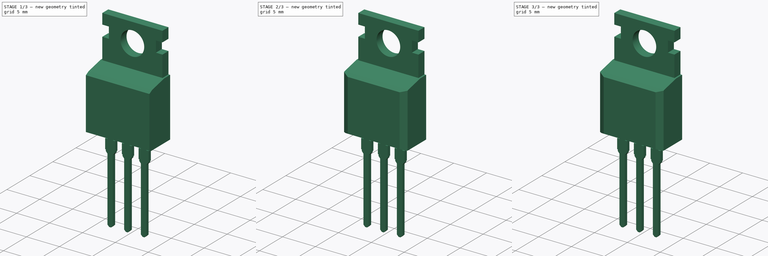
[diagram: build sequence overview — one tinted view per stage of 3, left to right]
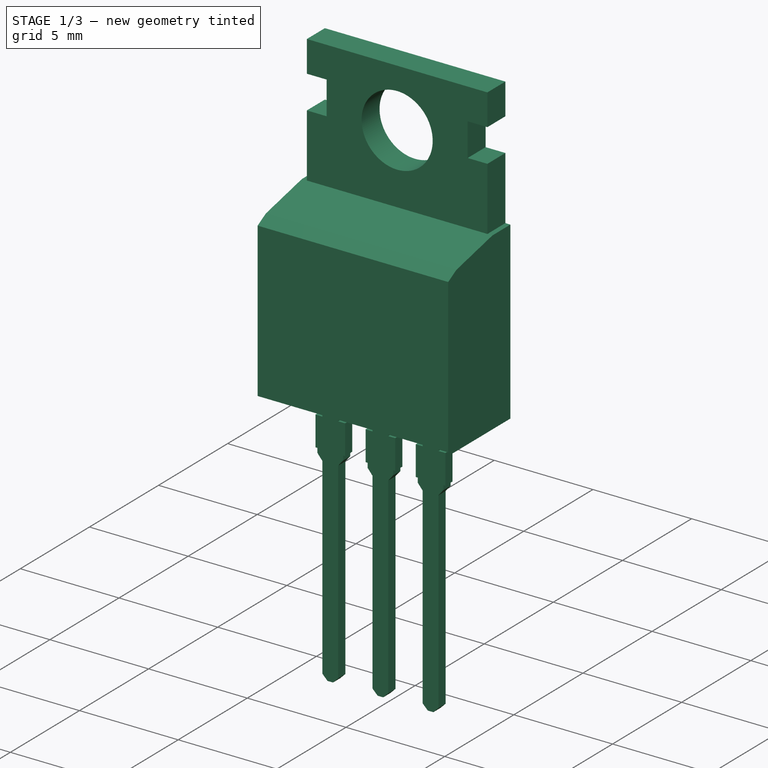
[diagram: stage 1 of 3 — iso view after this stage's code; geometry added in this stage tinted green]
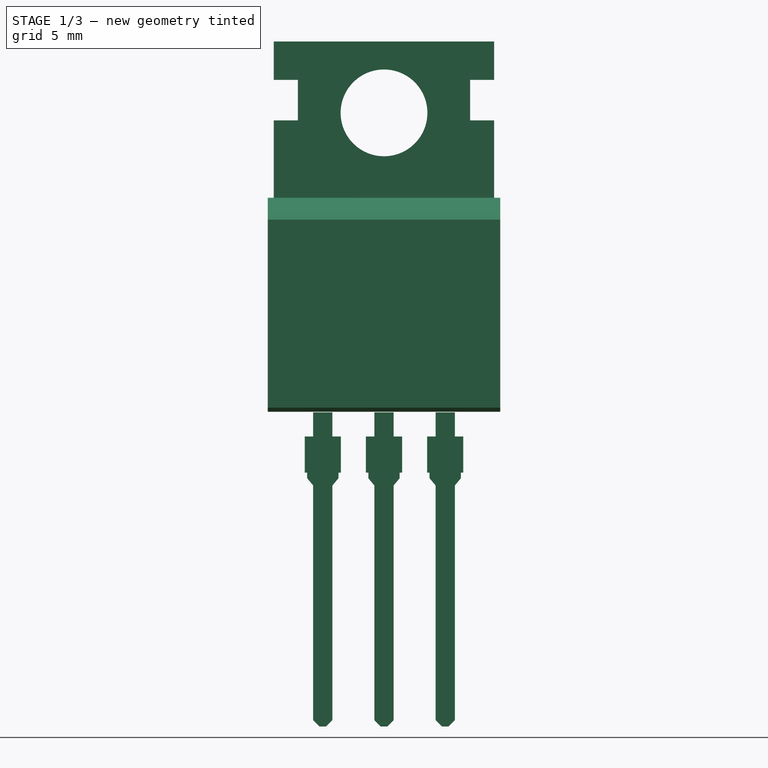
[diagram: stage 1 of 3 — front view after this stage's code; geometry added in this stage tinted green]
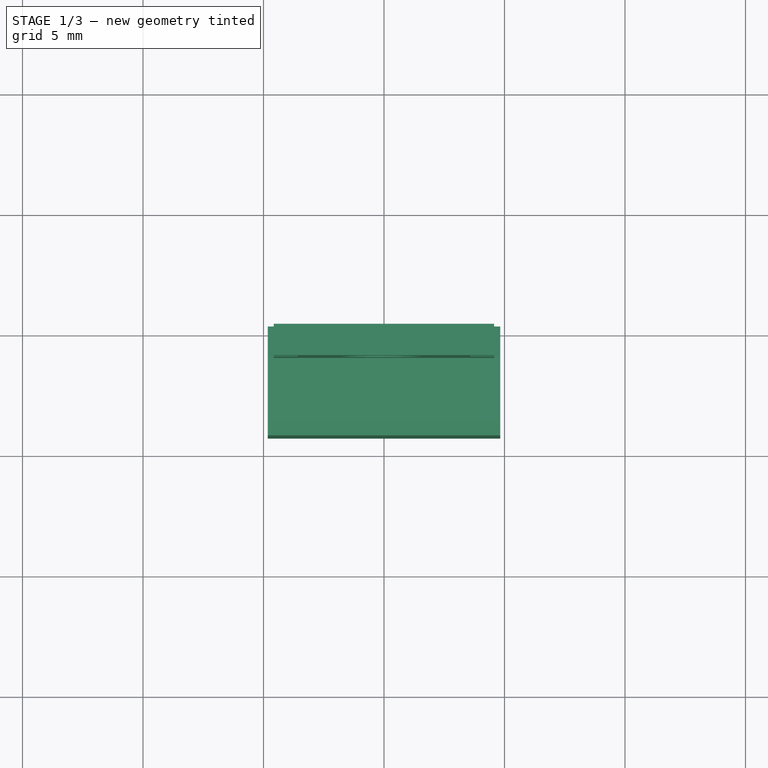
[diagram: stage 1 of 3 — top view after this stage's code; geometry added in this stage tinted green]
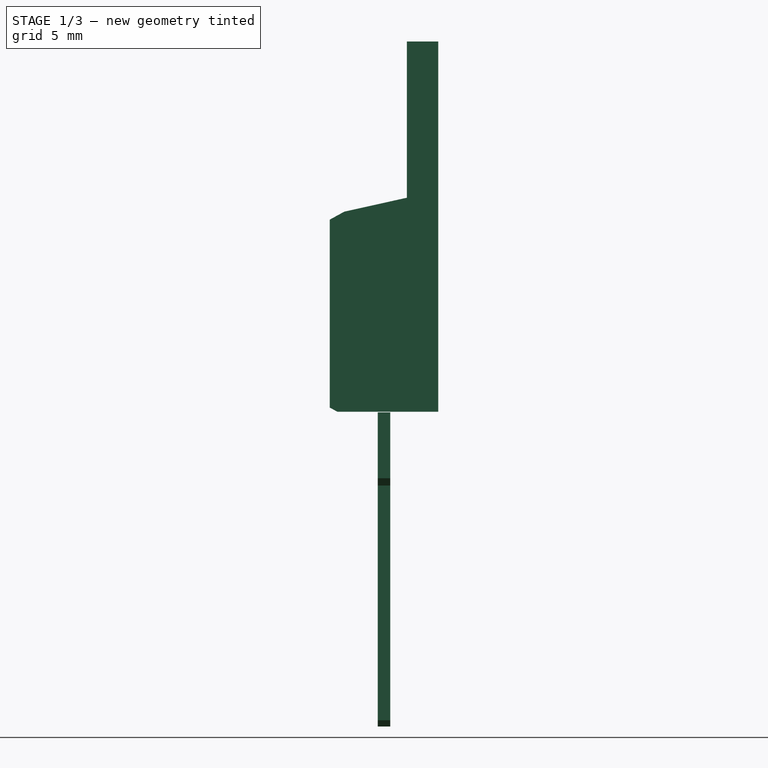
[diagram: stage 1 of 3 — right view after this stage's code; geometry added in this stage tinted green]
FCSTD DOCUMENT  (FreeCAD 0.14R3702 (Git))
Label: mosfet-P55NF06L
License: CC-BY 3.0
LicenseURL: http://creativecommons.org/licenses/by/3.0/
objects: Sketcher::SketchObject×5, Part::Feature×4, PartDesign::Pad×3, PartDesign::Pocket×2, Part::FeaturePython×1, App::DocumentObjectGroup×1, Part::Compound×1
note: 21 computed .brp shape members not serialized (recipe doc carries the construction recipe); baked Part::Feature solids carry a one-line shape summary decoded from their .brp

FEATURE [Part::Feature] Part__Feature  label="RAMPS1_136"
  Placement = pos=(0,0,1.05) rot=(1,0,0;3.14159rad)
  shape: bbox 9.653 x 4.501 x 28.38 mm, 90 faces (baked)
FEATURE [Sketcher::SketchObject] Sketch  label="main-body-sketch"
  Placement = pos=(0,0,0) rot=(0.57735,0.57735,0.57735;2.0944rad)
  sketch-geometry (7):
    g0: LineSegment StartX=0 StartY=8.88 StartZ=0 EndX=-1.3 EndY=8.88 EndZ=0
    g1: LineSegment StartX=-1.3 StartY=8.88 StartZ=0 EndX=-3.9 EndY=8.3 EndZ=0
    g2: LineSegment StartX=-3.9 StartY=8.3 StartZ=0 EndX=-4.5 EndY=7.97 EndZ=0
    g3: LineSegment StartX=-4.5 StartY=7.97 StartZ=0 EndX=-4.5 EndY=0.17 EndZ=0
    g4: LineSegment StartX=-4.5 StartY=0.17 StartZ=0 EndX=-4.18 EndY=0 EndZ=0
    g5: LineSegment StartX=-4.18 StartY=0 StartZ=0 EndX=0 EndY=0 EndZ=0
    g6: LineSegment StartX=0 StartY=0 StartZ=0 EndX=0 EndY=8.88 EndZ=0
  constraints (20):
    c: Coincident(g0,g1)
    c: Coincident(g1,g2)
    c: Coincident(g2,g3)
    c: Coincident(g3,g4)
    c: Coincident(g4,g5)
    c: Coincident(g5,g6)
    c: Coincident(g6,g0)
    c: Vertical(g6)
    c: Horizontal(g0)
    c: Vertical(g3)
    c: Horizontal(g5)
    c: Coincident(g5,g-1)
    c: DistanceY(g6) = 8.88
    c: DistanceX(g0) = -1.3
    c: DistanceY(g3) = -7.8
    c: DistanceX(g5) = 4.18
    c: DistanceX(g4,g3) = -0.32
    c: DistanceY(g3) = 0.17
    c: DistanceX(g1,g0) = 2.6
    c: DistanceY(g1,g0) = 0.58
FEATURE [PartDesign::Pad] Pad  label="main-body"
  Length = 9.652
  Length2 = 100
  Midplane = true
  Placement = pos=(0,0,0) rot=(0.57735,0.57735,0.57735;2.0944rad)
  Sketch = -> Sketch
  Type = 0
FEATURE [App::DocumentObjectGroup] Group  label="mosfet-src"
  Group = -> [Pad,Pad001,Pocket,Array,Pocket001]
FEATURE [Part::Feature] Pocket001001  label="body"
  Placement = pos=(0,0,0) rot=(0.57735,0.57735,0.57735;2.0944rad)
  shape: bbox 9.652 x 4.5 x 8.88 mm, 11 faces (baked)
FEATURE [Part::Feature] Pocket001002  label="drill001"
  Placement = pos=(0,0,0) rot=(1,0,0;1.5708rad)
  shape: bbox 9.144 x 1.3 x 6.5 mm, 15 faces (baked)
FEATURE [Part::Feature] Array001  label="pins"
  shape: bbox 6.58 x 0.52 x 13.03 mm, 60 faces, 3 solids (baked)
FEATURE [Part::Compound] Compound  label="Mosfet-P55NF06L"
  Links = -> [Pocket001001,Array001,Pocket001002]
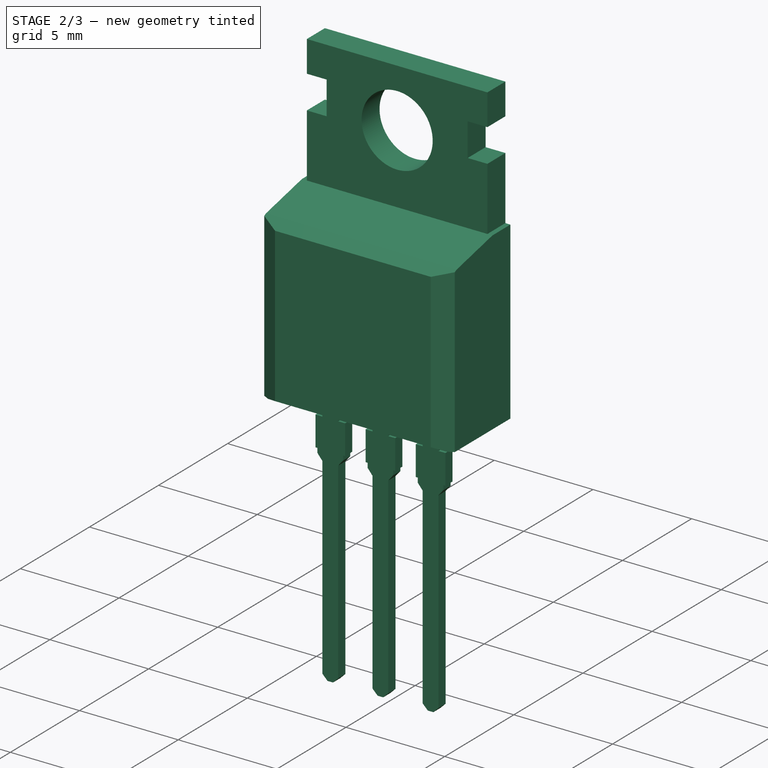
[diagram: stage 2 of 3 — iso view after this stage's code; geometry added in this stage tinted green]
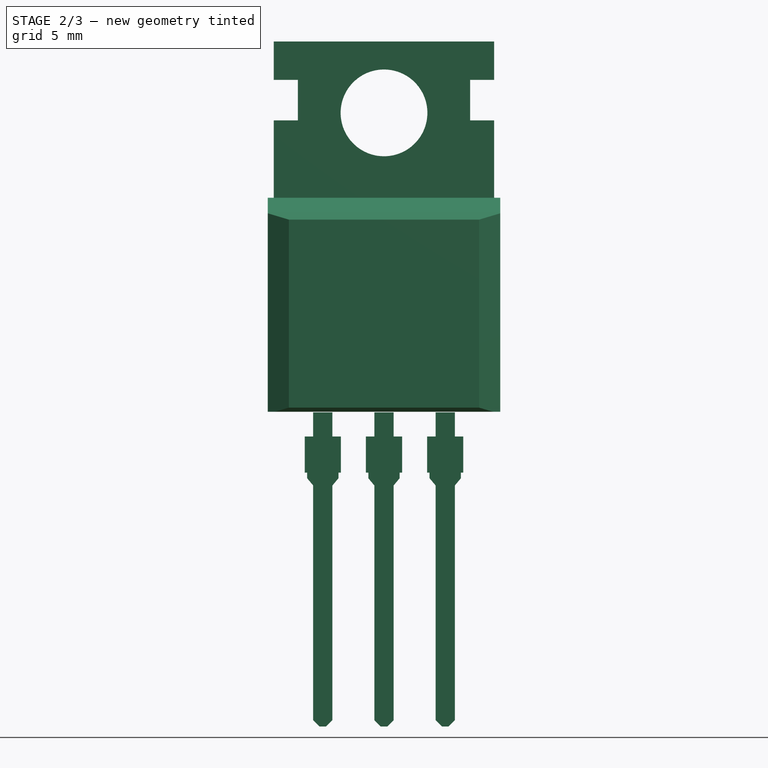
[diagram: stage 2 of 3 — front view after this stage's code; geometry added in this stage tinted green]
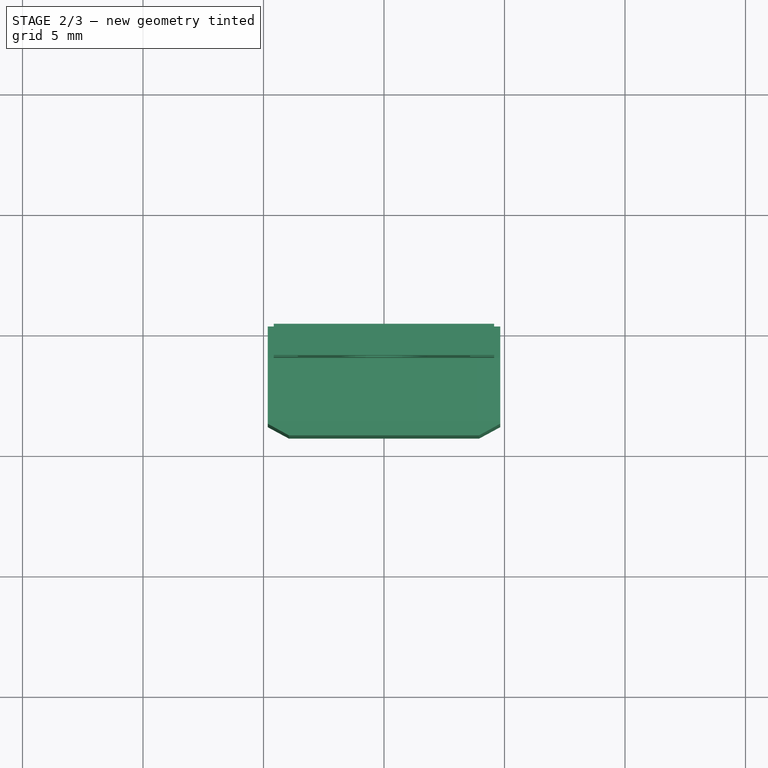
[diagram: stage 2 of 3 — top view after this stage's code; geometry added in this stage tinted green]
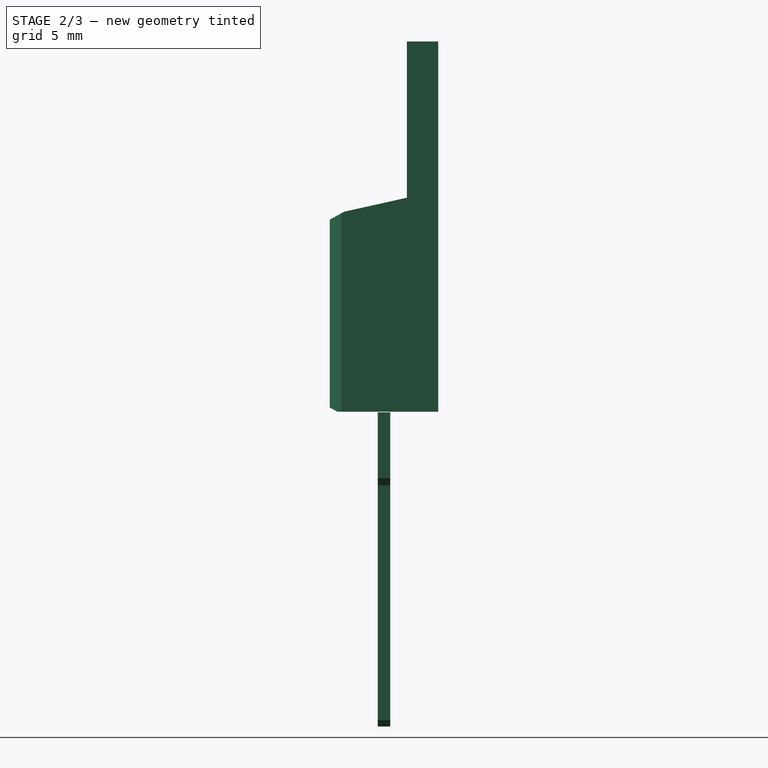
[diagram: stage 2 of 3 — right view after this stage's code; geometry added in this stage tinted green]
FEATURE [Sketcher::SketchObject] Sketch003  label="pin-master-sketch"
  Placement = pos=(-2.54,-1.99,-0.0295) rot=(-1,0,0;4.71239rad)
  sketch-geometry (18):
    g0: LineSegment StartX=0.4 StartY=0 StartZ=0 EndX=-0.4 EndY=0 EndZ=0
    g1: LineSegment StartX=-0.4 StartY=0 StartZ=0 EndX=-0.4 EndY=-1 EndZ=0
    g2: LineSegment StartX=-0.4 StartY=-1 StartZ=0 EndX=-0.75 EndY=-1 EndZ=0
    g3: LineSegment StartX=-0.75 StartY=-1 StartZ=0 EndX=-0.75 EndY=-2.5 EndZ=0
    g4: LineSegment StartX=-0.75 StartY=-2.5 StartZ=0 EndX=-0.65 EndY=-2.5 EndZ=0
    g5: LineSegment StartX=-0.65 StartY=-2.5 StartZ=0 EndX=-0.65 EndY=-2.73 EndZ=0
    g6: LineSegment StartX=-0.65 StartY=-2.73 StartZ=0 EndX=-0.4 EndY=-3.03 EndZ=0
    g7: LineSegment StartX=-0.4 StartY=-3.03 StartZ=0 EndX=-0.4 EndY=-12.77 EndZ=0
    g8: LineSegment StartX=-0.4 StartY=-12.77 StartZ=0 EndX=-0.14 EndY=-13.03 EndZ=0
    g9: LineSegment StartX=-0.14 StartY=-13.03 StartZ=0 EndX=0.14 EndY=-13.03 EndZ=0
    g10: LineSegment StartX=0.14 StartY=-13.03 StartZ=0 EndX=0.4 EndY=-12.77 EndZ=0
    g11: LineSegment StartX=0.4 StartY=-12.77 StartZ=0 EndX=0.4 EndY=-3.03 EndZ=0
    g12: LineSegment StartX=0.4 StartY=-3.03 StartZ=0 EndX=0.65 EndY=-2.73 EndZ=0
    g13: LineSegment StartX=0.65 StartY=-2.73 StartZ=0 EndX=0.65 EndY=-2.5 EndZ=0
    g14: LineSegment StartX=0.65 StartY=-2.5 StartZ=0 EndX=0.75 EndY=-2.5 EndZ=0
    g15: LineSegment StartX=0.75 StartY=-2.5 StartZ=0 EndX=0.75 EndY=-1 EndZ=0
    g16: LineSegment StartX=0.75 StartY=-1 StartZ=0 EndX=0.4 EndY=-1 EndZ=0
    g17: LineSegment StartX=0.4 StartY=-1 StartZ=0 EndX=0.4 EndY=0 EndZ=0
  constraints (51):
    c: Horizontal(g0)
    c: Coincident(g0,g1)
    c: Vertical(g1)
    c: Coincident(g1,g2)
    c: Horizontal(g2)
    c: Coincident(g2,g3)
    c: Vertical(g3)
    c: Coincident(g3,g4)
    c: Coincident(g4,g5)
    c: Vertical(g5)
    c: Coincident(g5,g6)
    c: Coincident(g6,g7)
    c: Vertical(g7)
    c: Coincident(g7,g8)
    c: Coincident(g8,g9)
    c: PointOnObject(g0,g-1)
    c: Symmetric(g0,g0,g-2)
    c: DistanceX(g0) = -0.8
    c: DistanceX(g2) = -0.35
    c: Horizontal(g4)
    c: DistanceY(g3) = -1.5
    c: DistanceX(g4) = 0.1
    c: DistanceY(g1) = -1
    c: DistanceY(g5) = -0.23
    c: DistanceY(g6,g5) = 0.3
    c: DistanceX(g5,g6) = 0.25
    c: Horizontal(g9)
    c: Symmetric(g8,g9,g-2)
    c: DistanceY(g7) = -9.74
    c: DistanceY(g8,g7) = 0.26
    c: DistanceX(g7,g8) = 0.26
    c: Coincident(g10,g11)
    c: Vertical(g11)
    c: Coincident(g10,g9)
    c: Symmetric(g7,g10,g-2)
    c: Symmetric(g6,g11,g-2)
    c: Coincident(g12,g13)
    c: Vertical(g13)
    c: Coincident(g13,g14)
    c: Horizontal(g14)
    c: Coincident(g14,g15)
    c: Vertical(g15)
    c: Coincident(g12,g11)
    c: Symmetric(g12,g5,g-2)
    c: Symmetric(g4,g13,g-2)
    c: Symmetric(g15,g2,g-2)
    c: Horizontal(g16)
    c: Coincident(g16,g17)
    c: Vertical(g17)
    c: Coincident(g16,g15)
    c: Coincident(g17,g0)
FEATURE [PartDesign::Pad] Pad002  label="pin-master"
  Length = 0.52
  Length2 = 100
  Placement = pos=(-2.54,-1.99,-0.0295) rot=(-1,0,0;4.71239rad)
  Sketch = -> Sketch003
  Type = 0
FEATURE [Part::FeaturePython] Array  # Draft array (typed FeaturePython)
  Angle = 360
  ArrayType = 0
  Axis = (0,0,1)
  Base = -> Pad002
  Center = (0,0,0)
  IntervalX = (2.54,0,0)
  IntervalY = (0,1,0)
  IntervalZ = (0,0,1)
  NumberPolar = 1
  NumberX = 3
  NumberY = 1
  NumberZ = 1
FEATURE [Sketcher::SketchObject] Sketch004  label="body-cutout-1-sketch"
  ExternalGeometry = -> [Pad]
  Placement = pos=(0,0,8.88) rot=(0,0,-1;1.5708rad)
  Support = -> Pad [Face1]
  sketch-geometry (6):
    g0: LineSegment StartX=4.02 StartY=-4.826 StartZ=0 EndX=4.5 EndY=-3.946 EndZ=0
    g1: LineSegment StartX=4.5 StartY=-3.946 StartZ=0 EndX=4.5 EndY=3.946 EndZ=0
    g2: LineSegment StartX=4.5 StartY=3.946 StartZ=0 EndX=4.02 EndY=4.826 EndZ=0
    g3: LineSegment StartX=4.02 StartY=4.826 StartZ=0 EndX=5.05 EndY=4.826 EndZ=0
    g4: LineSegment StartX=5.05 StartY=4.826 StartZ=0 EndX=5.05 EndY=-4.826 EndZ=0
    g5: LineSegment StartX=5.05 StartY=-4.826 StartZ=0 EndX=4.02 EndY=-4.826 EndZ=0
  constraints (18):
    c: Coincident(g0,g1)
    c: Vertical(g1)
    c: Coincident(g1,g2)
    c: Coincident(g2,g3)
    c: Horizontal(g3)
    c: Coincident(g3,g4)
    c: Vertical(g4)
    c: Coincident(g4,g5)
    c: Coincident(g5,g0)
    c: Horizontal(g5)
    c: PointOnObject(g0,g-3)
    c: PointOnObject(g0,g-4)
    c: DistanceX(g-4,g0) = -0.48
    c: DistanceY(g-4,g0) = 0.88
    c: DistanceX(g-4,g4) = 0.55
    c: Symmetric(g4,g3,g-1)
    c: Symmetric(g1,g0,g-1)
    c: Symmetric(g2,g0,g-1)
FEATURE [PartDesign::Pocket] Pocket001  label="body-cutout-1"
  Length = 5
  Placement = pos=(0,0,0) rot=(0.57735,0.57735,0.57735;2.0944rad)
  Sketch = -> Sketch004
  Type = 1
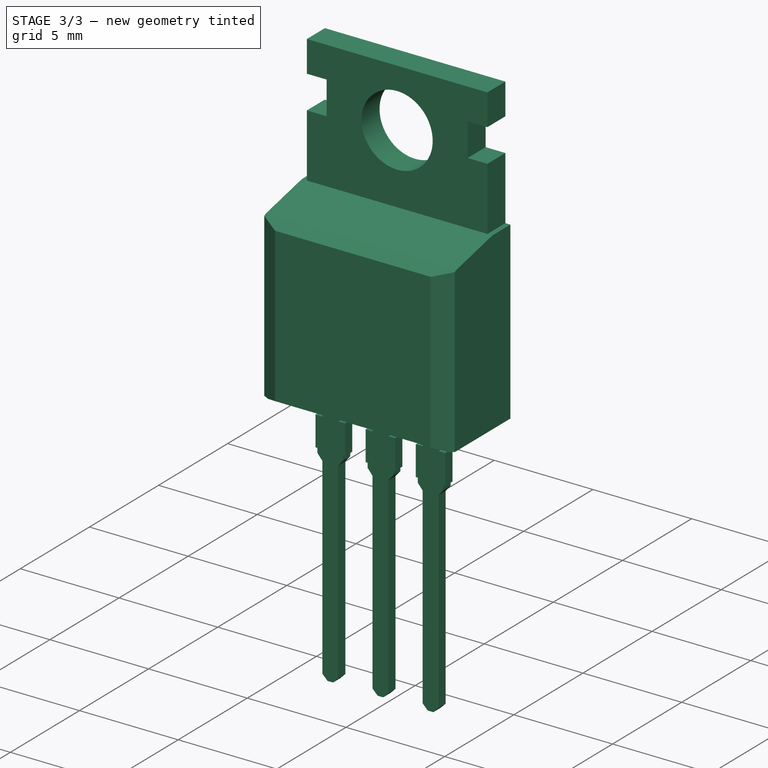
[diagram: stage 3 of 3 — iso view after this stage's code; geometry added in this stage tinted green]
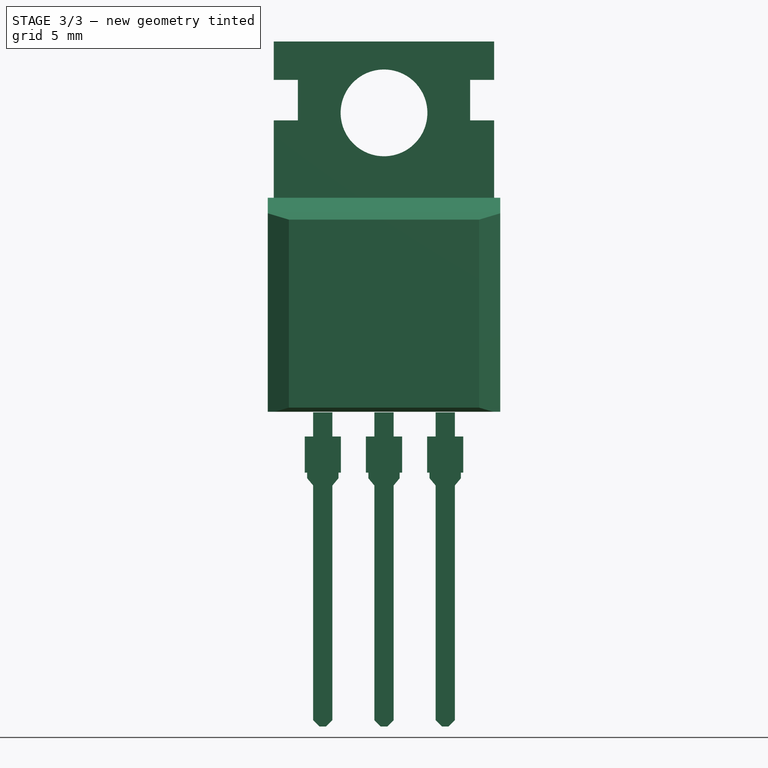
[diagram: stage 3 of 3 — front view after this stage's code; geometry added in this stage tinted green]
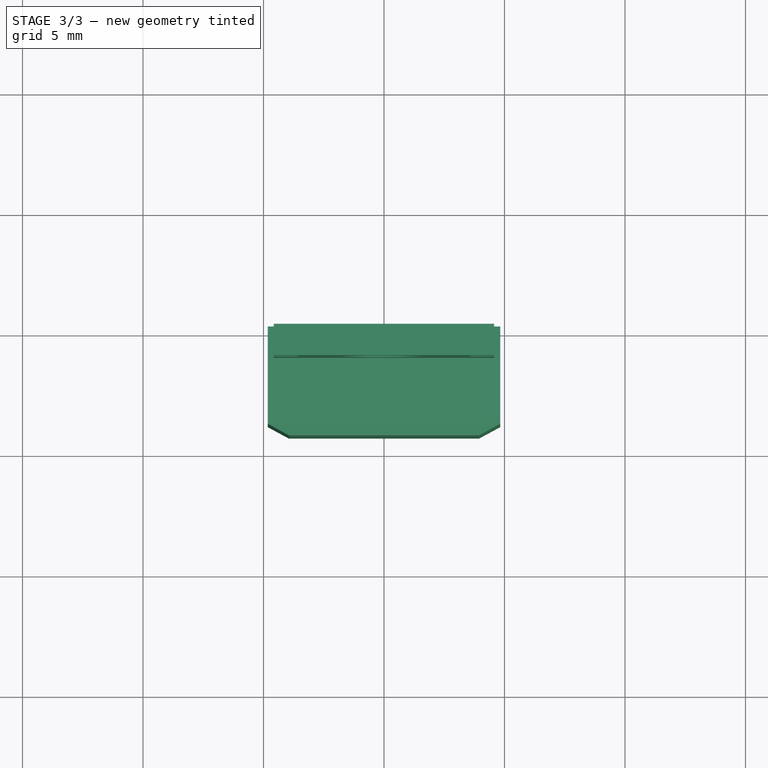
[diagram: stage 3 of 3 — top view after this stage's code; geometry added in this stage tinted green]
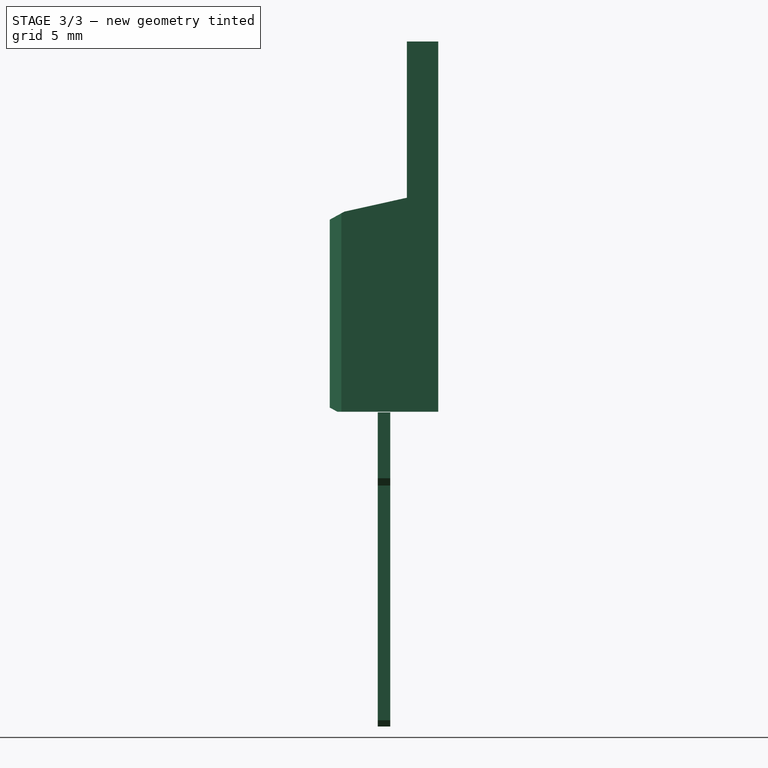
[diagram: stage 3 of 3 — right view after this stage's code; geometry added in this stage tinted green]
FEATURE [Sketcher::SketchObject] Sketch001  label="top-part-sketch"
  Placement = pos=(0,0,0) rot=(-1,0,0;4.71239rad)
  sketch-geometry (12):
    g0: LineSegment StartX=-4.572 StartY=15.36 StartZ=0 EndX=4.572 EndY=15.36 EndZ=0
    g1: LineSegment StartX=4.572 StartY=8.86 StartZ=0 EndX=-4.572 EndY=8.86 EndZ=0
    g2: LineSegment StartX=-4.572 StartY=8.86 StartZ=0 EndX=-4.572 EndY=12.09 EndZ=0
    g3: LineSegment StartX=-4.572 StartY=12.09 StartZ=0 EndX=-3.572 EndY=12.09 EndZ=0
    g4: LineSegment StartX=-3.572 StartY=12.09 StartZ=0 EndX=-3.572 EndY=13.77 EndZ=0
    g5: LineSegment StartX=-3.572 StartY=13.77 StartZ=0 EndX=-4.572 EndY=13.77 EndZ=0
    g6: LineSegment StartX=-4.572 StartY=13.77 StartZ=0 EndX=-4.572 EndY=15.36 EndZ=0
    g7: LineSegment StartX=4.572 StartY=15.36 StartZ=0 EndX=4.572 EndY=13.77 EndZ=0
    g8: LineSegment StartX=4.572 StartY=13.77 StartZ=0 EndX=3.572 EndY=13.77 EndZ=0
    g9: LineSegment StartX=3.572 StartY=13.77 StartZ=0 EndX=3.572 EndY=12.09 EndZ=0
    g10: LineSegment StartX=3.572 StartY=12.09 StartZ=0 EndX=4.572 EndY=12.09 EndZ=0
    g11: LineSegment StartX=4.572 StartY=12.09 StartZ=0 EndX=4.572 EndY=8.86 EndZ=0
  constraints (35):
    c: Horizontal(g0)
    c: Symmetric(g0,g0,g-2)
    c: Horizontal(g1)
    c: Coincident(g1,g2)
    c: Vertical(g2)
    c: Coincident(g2,g3)
    c: Horizontal(g3)
    c: Coincident(g3,g4)
    c: Vertical(g4)
    c: Coincident(g4,g5)
    c: Horizontal(g5)
    c: Coincident(g5,g6)
    c: Coincident(g6,g0)
    c: Vertical(g6)
    c: DistanceX(g0) = 9.144
    c: DistanceY(g0,g1) = -6.5
    c: PointOnObject(g2,g6)
    c: DistanceX(g5) = -1
    c: DistanceY(g4) = 1.68
    c: DistanceY(g2) = 3.23
    c: DistanceY(g-1,g1) = 8.86
    c: Symmetric(g1,g1,g-2)
    c: Vertical(g7)
    c: Coincident(g7,g8)
    c: Coincident(g8,g9)
    c: Vertical(g9)
    c: Coincident(g9,g10)
    c: Coincident(g10,g11)
    c: Vertical(g11)
    c: Horizontal(g10)
    c: Horizontal(g8)
    c: Coincident(g11,g1)
    c: Coincident(g7,g0)
    c: Symmetric(g8,g4,g-2)
    c: Symmetric(g9,g3,g-2)
FEATURE [PartDesign::Pad] Pad001  label="top-part"
  Length = 1.3
  Length2 = 100
  Placement = pos=(0,0,0) rot=(-1,0,0;4.71239rad)
  Sketch = -> Sketch001
  Type = 0
FEATURE [Sketcher::SketchObject] Sketch002  label="drill-sketch"
  Placement = pos=(0,-1.3,0) rot=(1,0,0;1.5708rad)
  Support = -> Pad001 [Face14]
  sketch-geometry (1):
    g0: Circle CenterX=0 CenterY=12.4 CenterZ=0 NormalX=0 NormalY=0 NormalZ=1 Radius=1.8
  constraints (3):
    c: PointOnObject(g0,g-2)
    c: DistanceY(g-1,g0) = 12.4
    c: Radius(g0) = 1.8
FEATURE [PartDesign::Pocket] Pocket  label="drill"
  Length = 5
  Placement = pos=(0,0,0) rot=(-1,0,0;4.71239rad)
  Sketch = -> Sketch002
  Type = 1
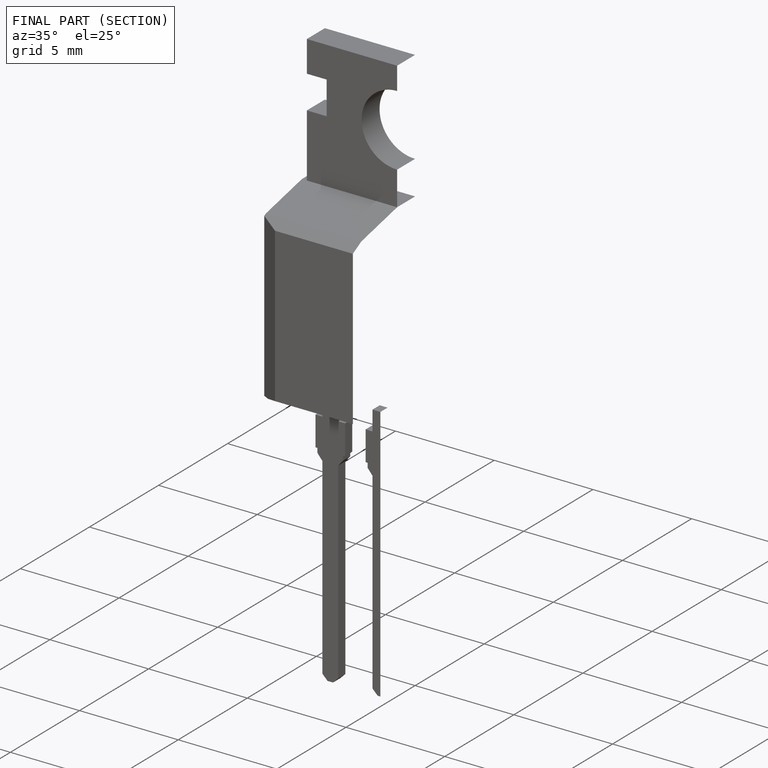
[diagram: finished part — half-section view (interior)]
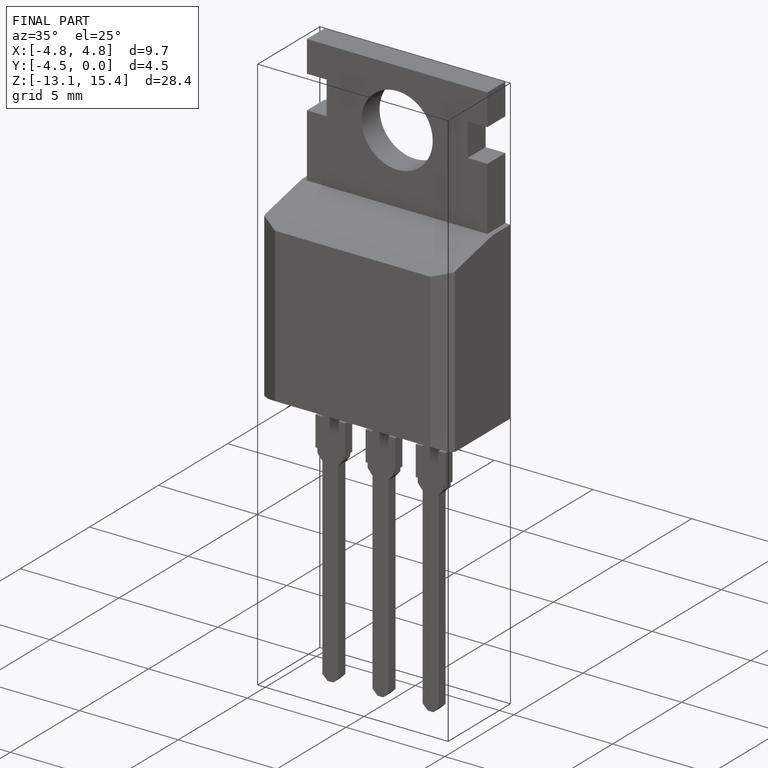
[diagram: finished part — iso view with bounding-box wireframe]
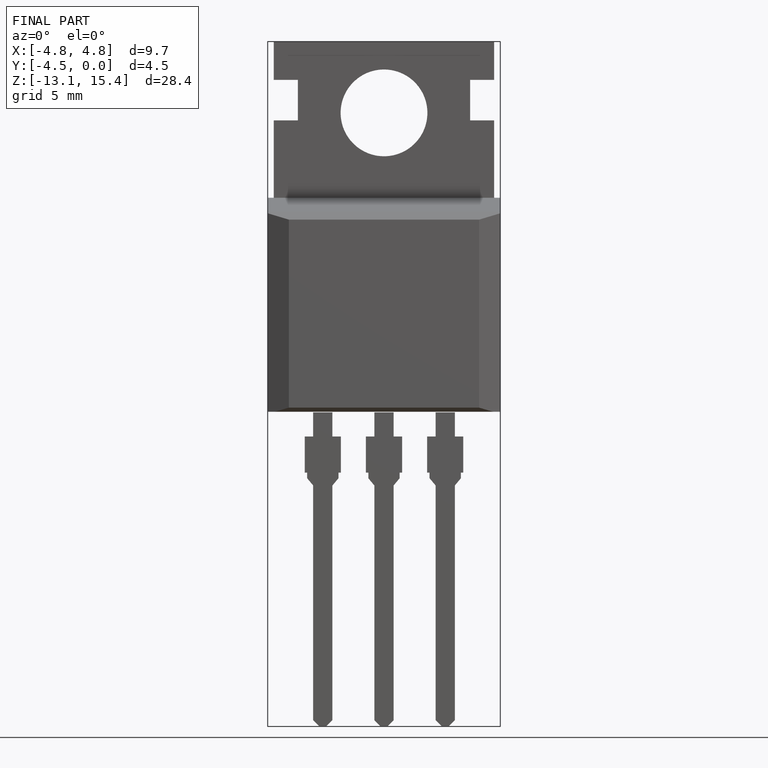
[diagram: finished part — front view with bounding-box wireframe]
